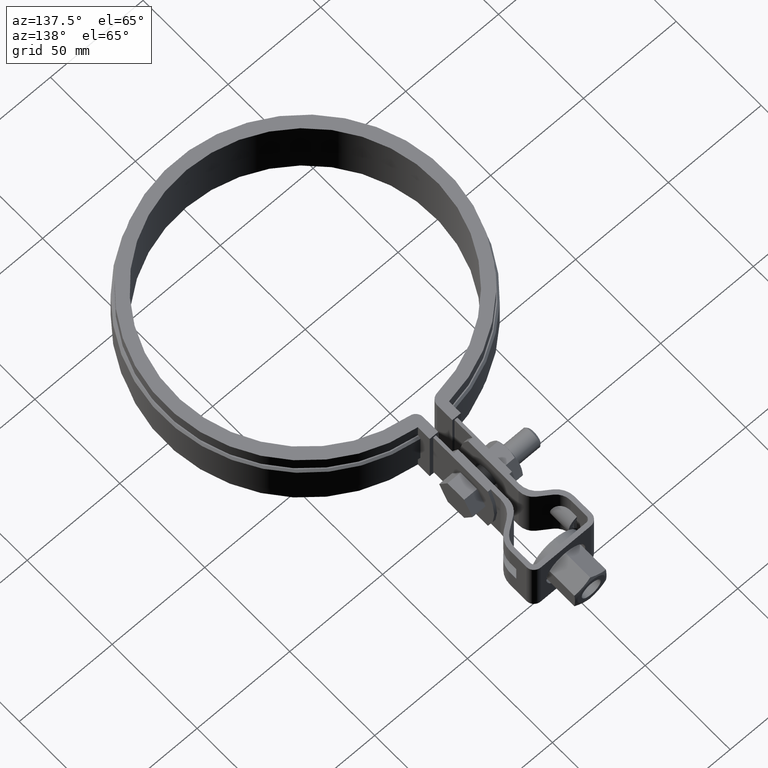
[diagram: clean part render]
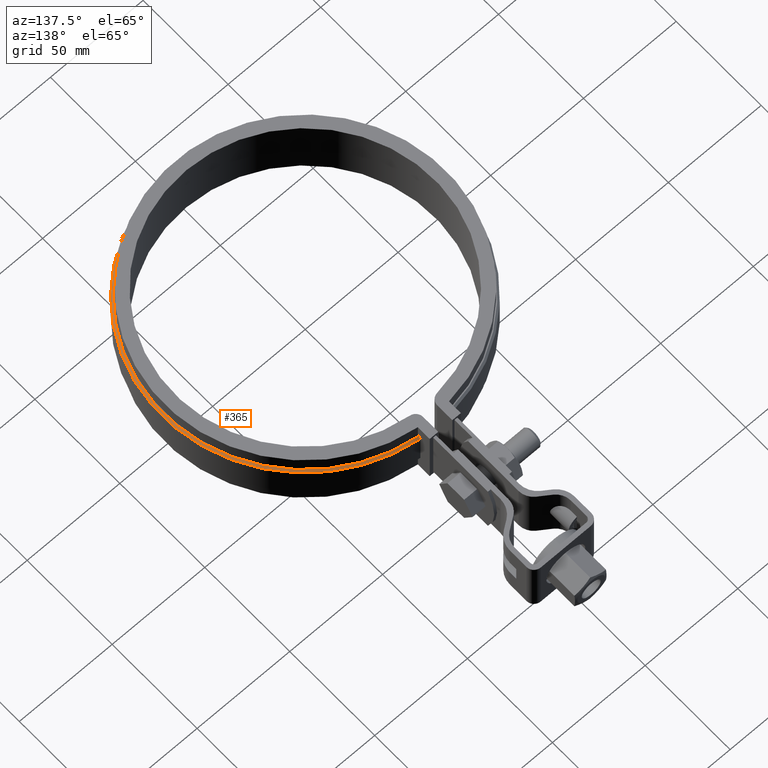
[diagram: same view with one face highlighted and labeled with its STEP entity id]
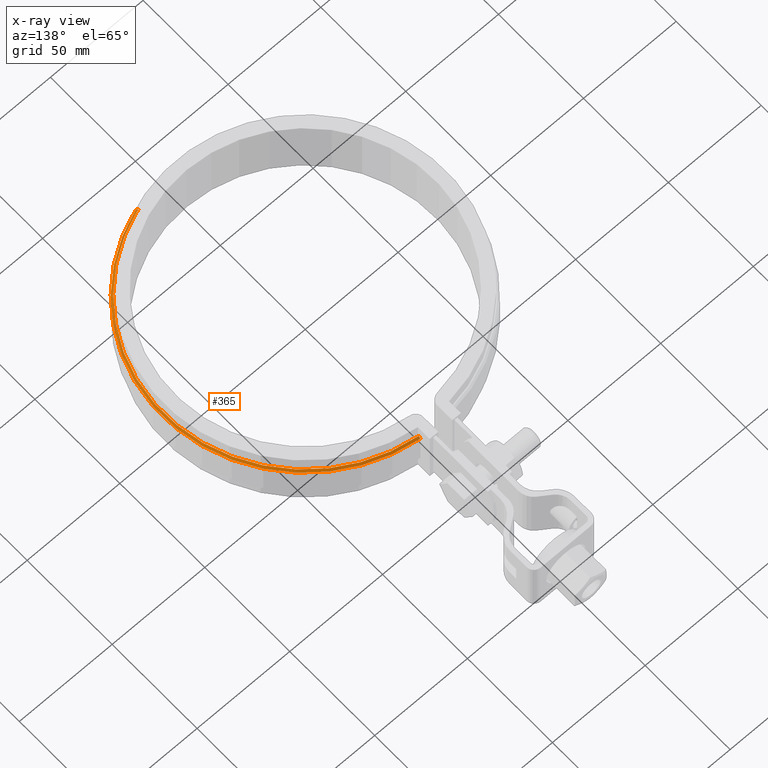
[diagram: x-ray of the same camera — body ghosted, the highlighted face saturated]
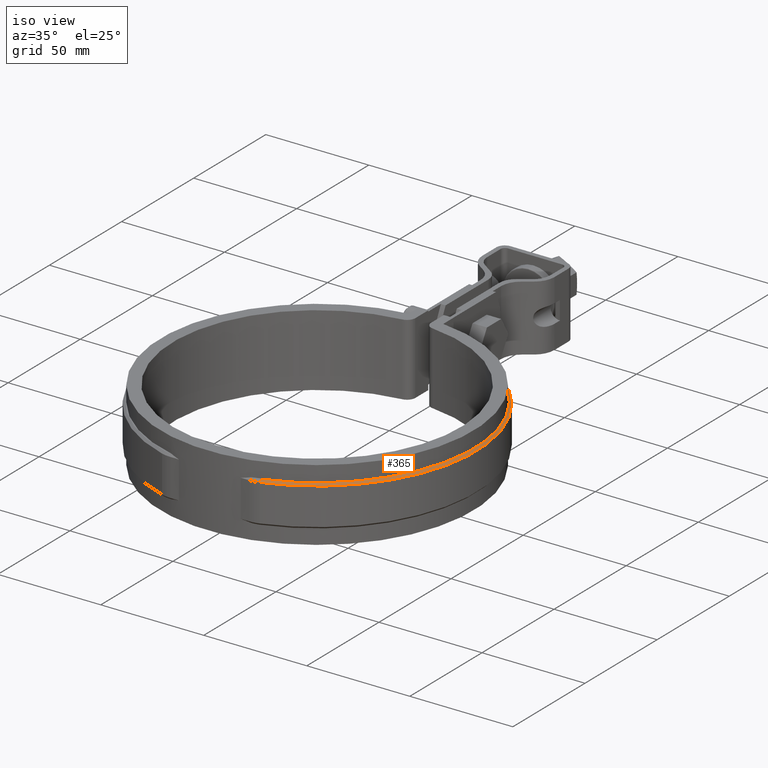
[diagram: same view with one face highlighted and labeled with its STEP entity id]
A machine part, auxiliary view. The second image highlights one B-rep face of the part: STEP entity #365.
The next image is the same camera in x-ray: the body ghosted, the highlighted face saturated — about 0% of this face is hidden behind the body in this view.
A second angle (iso view) of the same face is appended — the face is thin or edge-on in the first view.
In plain terms, the highlighted conical surface has half-angle 45 deg.
Its self-contained STEP definition (entity closure, byte-faithful):
#365 = ADVANCED_FACE( '', ( #603 ), #604, .T. );
#603 = FACE_OUTER_BOUND( '', #1738, .T. );
#604 = CONICAL_SURFACE( '', #1739, 76.4000000000000, 0.785398163397450 );
#1738 = EDGE_LOOP( '', ( #3571, #3572, #3573, #3574 ) );
#1739 = AXIS2_PLACEMENT_3D( '', #3575, #3576, #3577 );
#3571 = ORIENTED_EDGE( '', *, *, #5055, .F. );
#3572 = ORIENTED_EDGE( '', *, *, #5145, .F. );
#3573 = ORIENTED_EDGE( '', *, *, #5144, .F. );
#3574 = ORIENTED_EDGE( '', *, *, #5146, .F. );
#3575 = CARTESIAN_POINT( '', ( 6.93889390390723E-015, -2.77555756156289E-014, -6.00000000000000 ) );
#3576 = DIRECTION( '', ( 0.000000000000000, 0.000000000000000, -1.00000000000000 ) );
#3577 = DIRECTION( '', ( -1.00000000000000, 0.000000000000000, 0.000000000000000 ) );
#5055 = EDGE_CURVE( '', #5591, #5575, #5593, .T. );
#5144 = EDGE_CURVE( '', #5743, #5741, #5745, .T. );
#5145 = EDGE_CURVE( '', #5741, #5591, #5746, .T. );
#5146 = EDGE_CURVE( '', #5575, #5743, #5747, .F. );
#5575 = VERTEX_POINT( '', #7280 );
#5591 = VERTEX_POINT( '', #7306 );
#5593 = B_SPLINE_CURVE_WITH_KNOTS( '', 3, ( #7309, #7310, #7311, #7312 ), .UNSPECIFIED., .F., .F., ( 4, 4 ), ( 0.000000000000000, 0.00141847679147930 ), .UNSPECIFIED. );
#5741 = VERTEX_POINT( '', #8290 );
#5743 = VERTEX_POINT( '', #8292 );
#5745 = LINE( '', #8294, #8295 );
#5746 = CIRCLE( '', #8296, 76.4000000000000 );
#5747 = CIRCLE( '', #8297, 77.4000000000000 );
#7280 = CARTESIAN_POINT( '', ( 8.39999999999995, 76.9428359238208, -7.00000000000001 ) );
#7306 = CARTESIAN_POINT( '', ( 8.40000000000000, 75.9368158405394, -6.00000000000000 ) );
#7309 = CARTESIAN_POINT( '', ( 8.40000000000000, 75.9368158405394, -6.00000000000000 ) );
#7310 = CARTESIAN_POINT( '', ( 8.40000000000000, 76.2721690406654, -6.33332008114534 ) );
#7311 = CARTESIAN_POINT( '', ( 8.39999999999999, 76.6075088977390, -6.66665358722698 ) );
#7312 = CARTESIAN_POINT( '', ( 8.39999999999999, 76.9428359238207, -7.00000000000000 ) );
#8290 = CARTESIAN_POINT( '', ( 23.4041590270472, -72.7269230769231, -6.00000000000000 ) );
#8292 = CARTESIAN_POINT( '', ( 23.7104961870871, -73.6788461538462, -7.00000000000001 ) );
#8294 = CARTESIAN_POINT( '', ( 23.7104961870871, -73.6788461538462, -7.00000000000000 ) );
#8295 = VECTOR( '', #9492, 1000.00000000000 );
#8296 = AXIS2_PLACEMENT_3D( '', #9493, #9494, #9495 );
#8297 = AXIS2_PLACEMENT_3D( '', #9496, #9497, #9498 );
#9492 = DIRECTION( '', ( -0.216613083193632, 0.673111262860270, 0.707106781186548 ) );
#9493 = CARTESIAN_POINT( '', ( 6.93889390390723E-015, -2.77555756156289E-014, -6.00000000000000 ) );
#9494 = DIRECTION( '', ( 0.000000000000000, 0.000000000000000, 1.00000000000000 ) );
#9495 = DIRECTION( '', ( 1.00000000000000, 0.000000000000000, 0.000000000000000 ) );
#9496 = CARTESIAN_POINT( '', ( 6.93889390390723E-015, -2.77555756156289E-014, -7.00000000000000 ) );
#9497 = DIRECTION( '', ( 0.000000000000000, 0.000000000000000, 1.00000000000000 ) );
#9498 = DIRECTION( '', ( 1.00000000000000, 0.000000000000000, 0.000000000000000 ) );